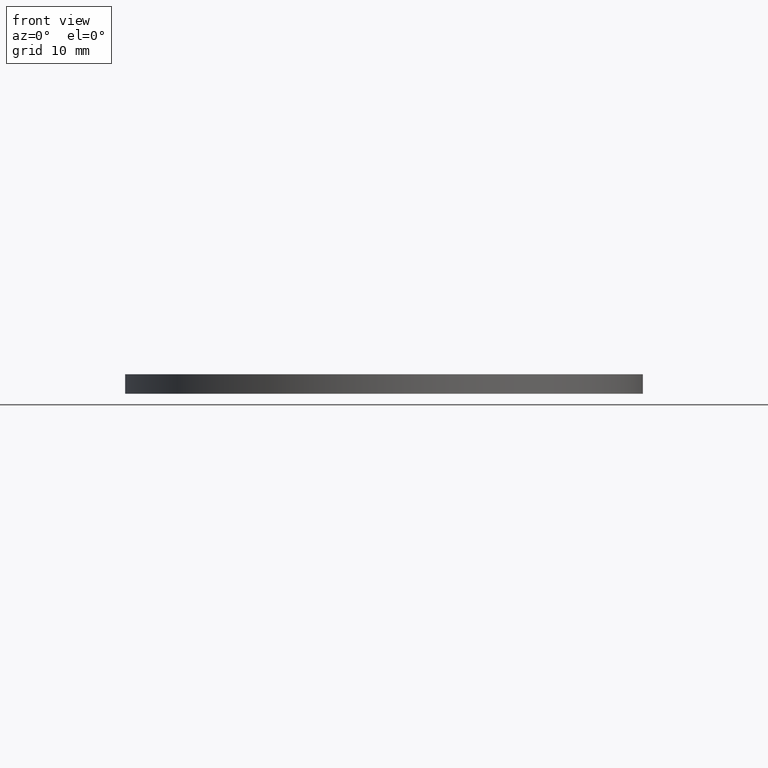
[diagram: clean part render]
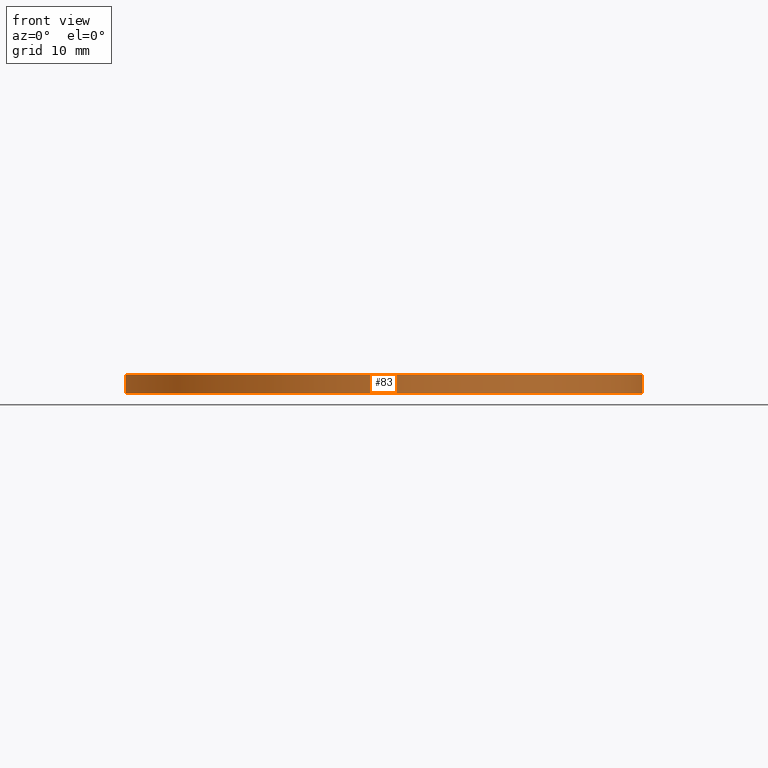
[diagram: same view with one face highlighted and labeled with its STEP entity id]
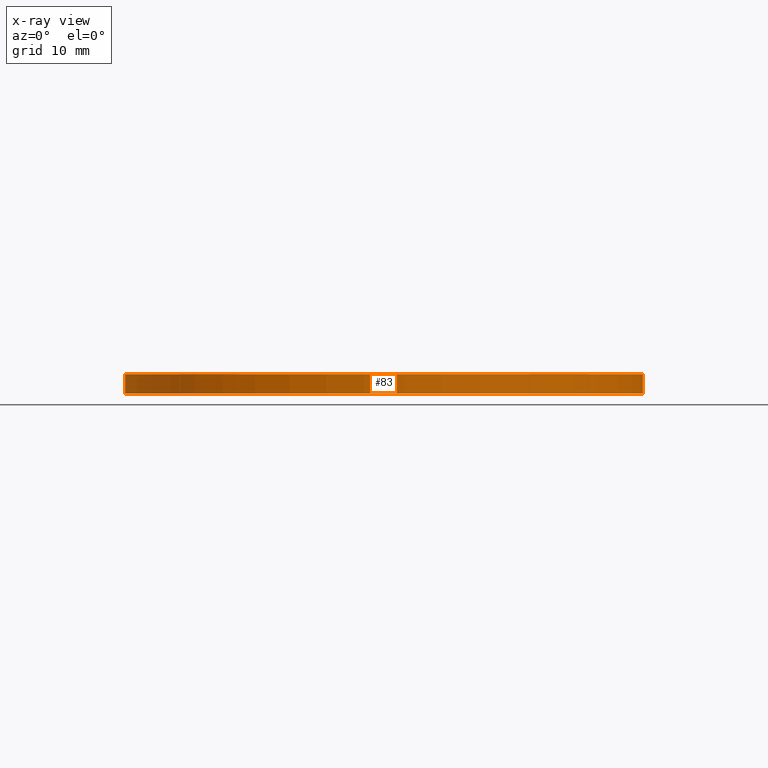
[diagram: x-ray of the same camera — body ghosted, the highlighted face saturated]
A machine part, front view. The second image highlights one B-rep face of the part: STEP entity #83.
The next image is the same camera in x-ray: the body ghosted, the highlighted face saturated — about 0% of this face is hidden behind the body in this view.
In plain terms, the highlighted cylindrical surface (bore or boss wall) has radius 40 mm, axis along (0, 0, -1).
Its self-contained STEP definition (entity closure, byte-faithful):
#21=FACE_OUTER_BOUND('',#26,.T.);
#26=EDGE_LOOP('',(#62,#63,#64,#65));
#35=LINE('',#154,#38);
#38=VECTOR('',#128,40.);
#41=CIRCLE('',#112,40.);
#42=CIRCLE('',#113,40.);
#47=VERTEX_POINT('',#151);
#48=VERTEX_POINT('',#153);
#53=EDGE_CURVE('',#47,#47,#41,.T.);
#54=EDGE_CURVE('',#47,#48,#35,.T.);
#55=EDGE_CURVE('',#48,#48,#42,.T.);
#62=ORIENTED_EDGE('',*,*,#53,.F.);
#63=ORIENTED_EDGE('',*,*,#54,.T.);
#64=ORIENTED_EDGE('',*,*,#55,.T.);
#65=ORIENTED_EDGE('',*,*,#54,.F.);
#80=CYLINDRICAL_SURFACE('',#111,40.);
#83=ADVANCED_FACE('',(#21),#80,.T.);
#111=AXIS2_PLACEMENT_3D('',#150,#124,#125);
#112=AXIS2_PLACEMENT_3D('',#152,#126,#127);
#113=AXIS2_PLACEMENT_3D('',#155,#129,#130);
#124=DIRECTION('center_axis',(6.6404364E-8,0.,-0.999999999999998));
#125=DIRECTION('ref_axis',(0.999999999999998,0.,6.6404364E-8));
#126=DIRECTION('center_axis',(6.6404364E-8,0.,-0.999999999999998));
#127=DIRECTION('ref_axis',(0.999999999999998,0.,6.6404364E-8));
#128=DIRECTION('',(-6.6404364E-8,0.,0.999999999999998));
#129=DIRECTION('center_axis',(6.6404364E-8,0.,-0.999999999999998));
#130=DIRECTION('ref_axis',(0.999999999999998,0.,6.6404364E-8));
#150=CARTESIAN_POINT('Origin',(-2.646772E-13,-4.52971E-14,1.328249146E-6));
#151=CARTESIAN_POINT('',(-39.9999995351696,-4.52971E-14,-7.0000013279254));
#152=CARTESIAN_POINT('Origin',(4.64830284E-7,-4.52971E-14,-6.99999867175084));
#153=CARTESIAN_POINT('',(-39.9999997343827,-4.52971E-14,-4.00000132792541));
#154=CARTESIAN_POINT('',(-40.0000000000002,-4.03985128034106E-14,-1.327925414E-6));
#155=CARTESIAN_POINT('Origin',(2.656171913228E-7,-4.52971E-14,-3.99999867175084));